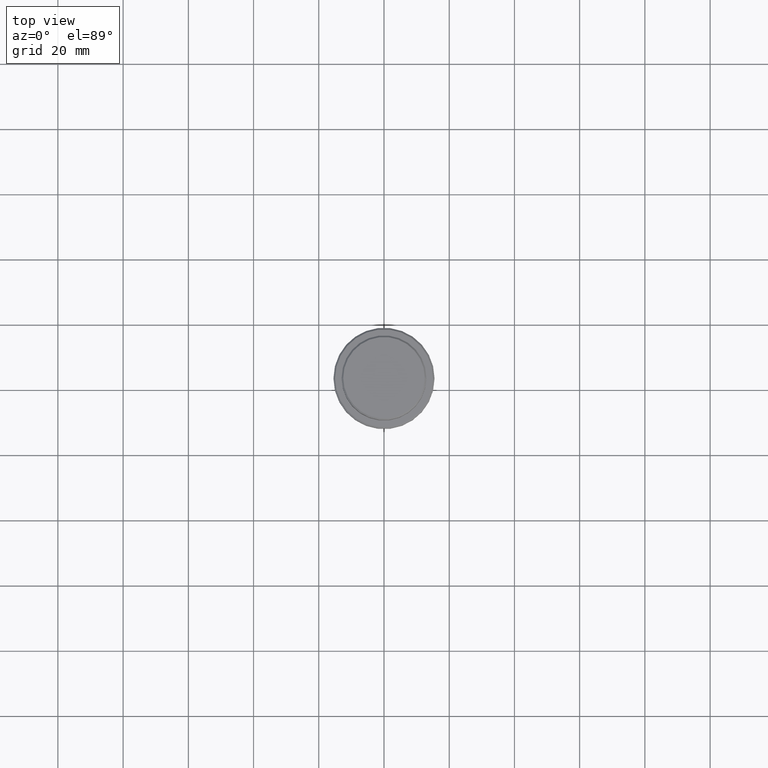
[diagram: clean part render]
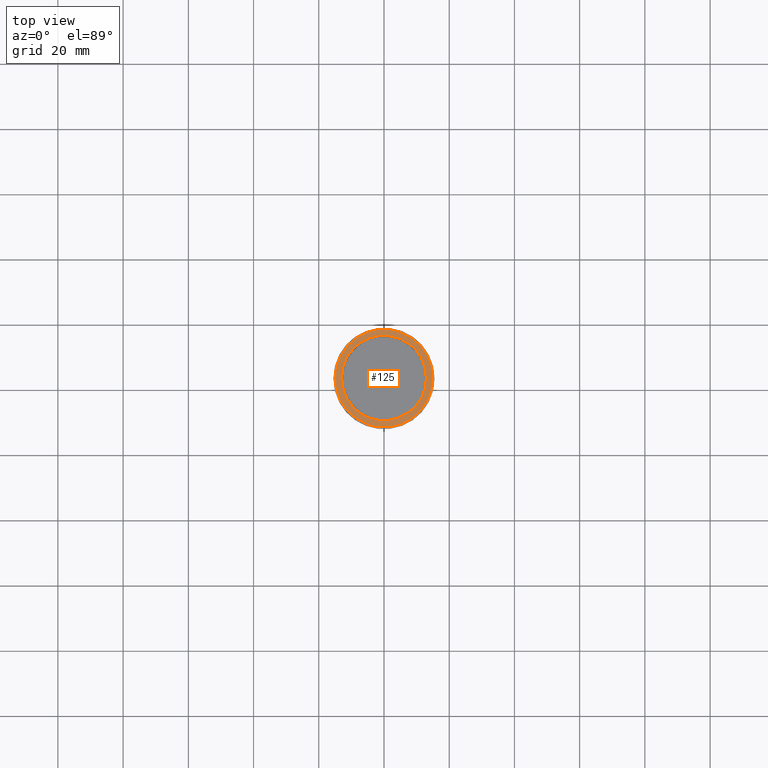
[diagram: same view with one face highlighted and labeled with its STEP entity id]
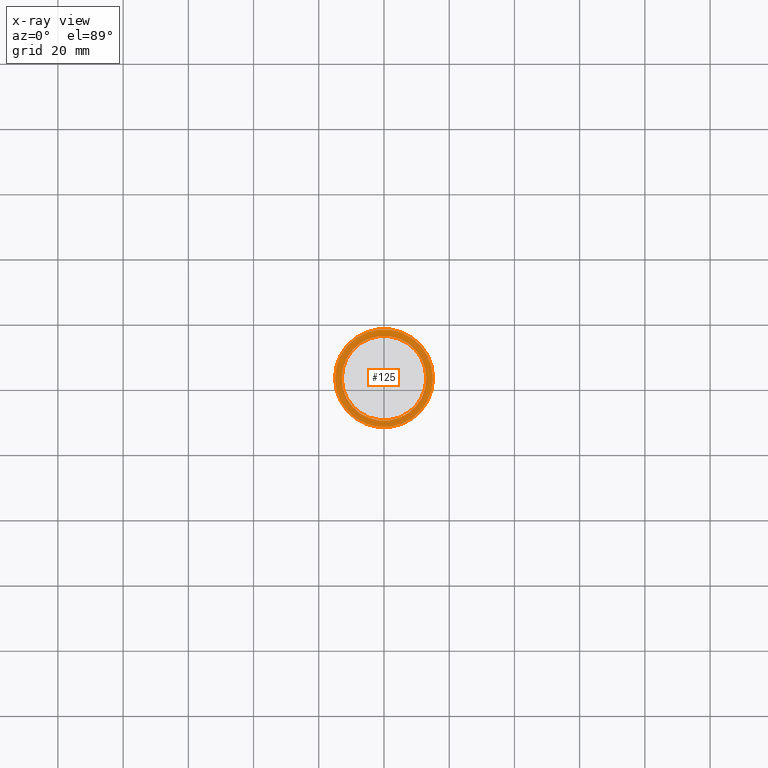
[diagram: x-ray of the same camera — body ghosted, the highlighted face saturated]
A machine part, top view. The second image highlights one B-rep face of the part: STEP entity #125.
The next image is the same camera in x-ray: the body ghosted, the highlighted face saturated — about 0% of this face is hidden behind the body in this view.
In plain terms, the highlighted planar face has unit normal (0, -0, 1).
Its self-contained STEP definition (entity closure, byte-faithful):
#21 = DIRECTION ( 'NONE',  ( 0.000000000000000000, -0.000000000000000000, 1.000000000000000000 ) ) ;
#26 = VERTEX_POINT ( 'NONE', #474 ) ;
#73 = CARTESIAN_POINT ( 'NONE',  ( 0.000000000000000000, 0.000000000000000000, -9.000000000000000000 ) ) ;
#96 = ORIENTED_EDGE ( 'NONE', *, *, #997, .T. ) ;
#125 = ADVANCED_FACE ( 'NONE', ( #1131, #244 ), #799, .T. ) ;
#144 = CARTESIAN_POINT ( 'NONE',  ( -12.99999999999999467, 1.592040838891558504E-15, -9.000000000000000000 ) ) ;
#170 = ORIENTED_EDGE ( 'NONE', *, *, #826, .T. ) ;
#191 = CARTESIAN_POINT ( 'NONE',  ( 12.99999999999999467, 0.000000000000000000, -9.000000000000000000 ) ) ;
#231 = DIRECTION ( 'NONE',  ( 0.000000000000000000, 0.000000000000000000, -1.000000000000000000 ) ) ;
#244 = FACE_BOUND ( 'NONE', #606, .T. ) ;
#277 = DIRECTION ( 'NONE',  ( -0.000000000000000000, -0.000000000000000000, 1.000000000000000000 ) ) ;
#301 = CARTESIAN_POINT ( 'NONE',  ( 0.000000000000000000, 0.000000000000000000, -9.000000000000000000 ) ) ;
#303 = VERTEX_POINT ( 'NONE', #630 ) ;
#357 = CIRCLE ( 'NONE', #1042, 12.99999999999999467 ) ;
#442 = EDGE_CURVE ( 'NONE', #303, #26, #610, .T. ) ;
#470 = DIRECTION ( 'NONE',  ( 1.000000000000000000, 0.000000000000000000, 0.000000000000000000 ) ) ;
#474 = CARTESIAN_POINT ( 'NONE',  ( 14.99999999999995737, 1.867586368699711009E-15, -9.000000000000000000 ) ) ;
#475 = DIRECTION ( 'NONE',  ( 0.000000000000000000, 0.000000000000000000, -1.000000000000000000 ) ) ;
#482 = AXIS2_PLACEMENT_3D ( 'NONE', #1219, #21, #794 ) ;
#515 = CIRCLE ( 'NONE', #681, 14.99999999999995737 ) ;
#606 = EDGE_LOOP ( 'NONE', ( #96, #1023 ) ) ;
#610 = CIRCLE ( 'NONE', #783, 14.99999999999995737 ) ;
#630 = CARTESIAN_POINT ( 'NONE',  ( -14.99999999999995737, 0.000000000000000000, -9.000000000000000000 ) ) ;
#644 = DIRECTION ( 'NONE',  ( 1.000000000000000000, 0.000000000000000000, 0.000000000000000000 ) ) ;
#681 = AXIS2_PLACEMENT_3D ( 'NONE', #301, #908, #879 ) ;
#716 = ORIENTED_EDGE ( 'NONE', *, *, #442, .T. ) ;
#783 = AXIS2_PLACEMENT_3D ( 'NONE', #73, #277, #644 ) ;
#794 = DIRECTION ( 'NONE',  ( 1.000000000000000000, 0.000000000000000000, 0.000000000000000000 ) ) ;
#799 = PLANE ( 'NONE',  #482 ) ;
#826 = EDGE_CURVE ( 'NONE', #26, #303, #515, .T. ) ;
#879 = DIRECTION ( 'NONE',  ( 1.000000000000000000, 0.000000000000000000, 0.000000000000000000 ) ) ;
#908 = DIRECTION ( 'NONE',  ( -0.000000000000000000, -0.000000000000000000, 1.000000000000000000 ) ) ;
#913 = VERTEX_POINT ( 'NONE', #191 ) ;
#917 = EDGE_CURVE ( 'NONE', #950, #913, #972, .T. ) ;
#950 = VERTEX_POINT ( 'NONE', #144 ) ;
#972 = CIRCLE ( 'NONE', #996, 12.99999999999999467 ) ;
#996 = AXIS2_PLACEMENT_3D ( 'NONE', #1229, #231, #1126 ) ;
#997 = EDGE_CURVE ( 'NONE', #913, #950, #357, .T. ) ;
#1023 = ORIENTED_EDGE ( 'NONE', *, *, #917, .T. ) ;
#1042 = AXIS2_PLACEMENT_3D ( 'NONE', #1349, #475, #470 ) ;
#1126 = DIRECTION ( 'NONE',  ( 1.000000000000000000, 0.000000000000000000, 0.000000000000000000 ) ) ;
#1131 = FACE_OUTER_BOUND ( 'NONE', #1184, .T. ) ;
#1184 = EDGE_LOOP ( 'NONE', ( #716, #170 ) ) ;
#1219 = CARTESIAN_POINT ( 'NONE',  ( 0.000000000000000000, 12.49999999999999289, -9.000000000000000000 ) ) ;
#1229 = CARTESIAN_POINT ( 'NONE',  ( 0.000000000000000000, 0.000000000000000000, -9.000000000000000000 ) ) ;
#1349 = CARTESIAN_POINT ( 'NONE',  ( 0.000000000000000000, 0.000000000000000000, -9.000000000000000000 ) ) ;